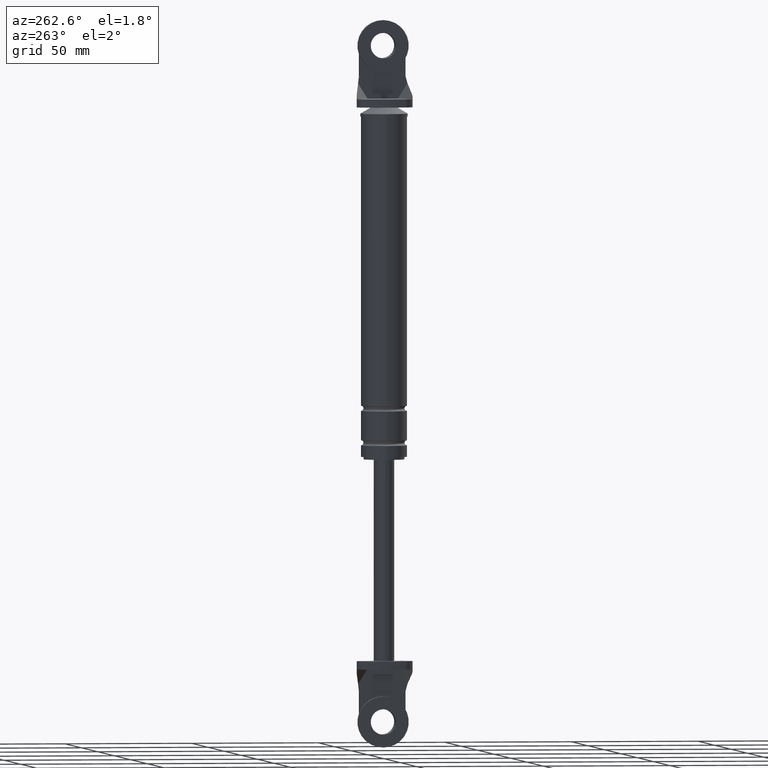
[diagram: clean part render]
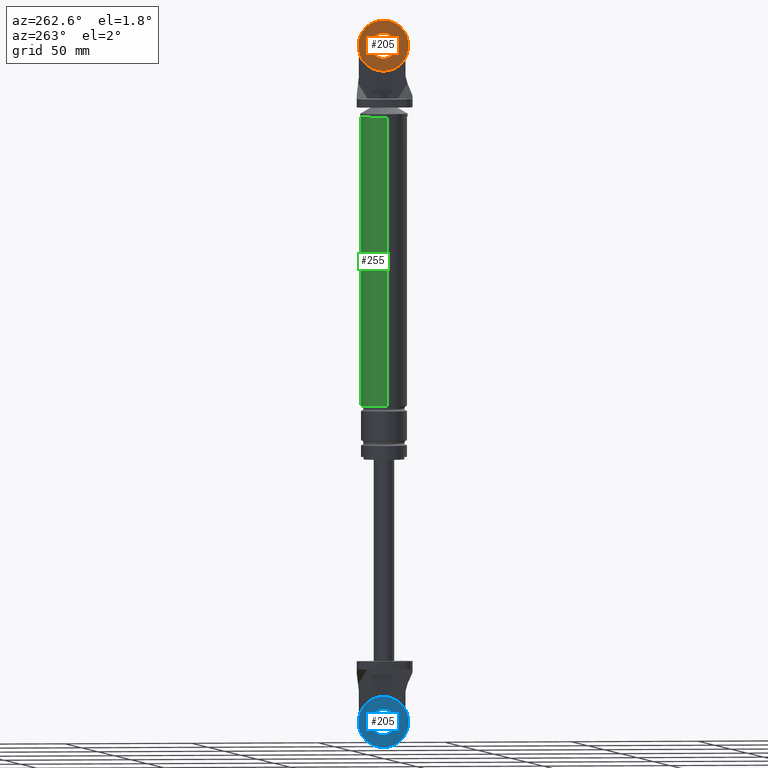
[diagram: same view with three faces highlighted in distinct colors, each labeled with its STEP entity id]
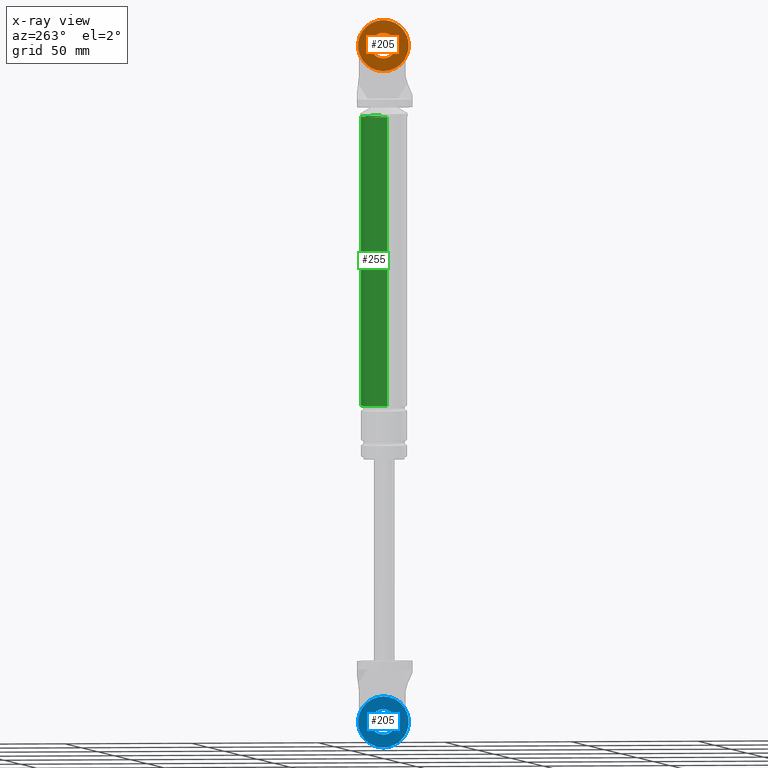
[diagram: x-ray of the same camera — body ghosted, the three highlighted faces saturated]
A machine part, auxiliary view with three faces highlighted in distinct colors.
The next image is the same camera in x-ray (body ghosted, the three faces saturated) — at least one of them is partly hidden behind the body in this view.
Their STEP definitions:

[orange] entity #205 — the highlighted planar face has unit normal (1, 0, 0).
#205=ADVANCED_FACE('',(#298,#299),#297,.F.);
#297=PLANE('',#1125);
#298=FACE_OUTER_BOUND('',#1126,.T.);
#299=FACE_BOUND('',#1127,.T.);
#1122=CARTESIAN_POINT('',(-6.90000460000E+001,2.07846096908E+001,2.76000000000E+002));
#1123=DIRECTION('',(1.00000000000E+000,0.00000000000E+000,0.00000000000E+000));
#1124=DIRECTION('',(0.00000000000E+000,-1.00000000000E+000,0.00000000000E+000));
#1125=AXIS2_PLACEMENT_3D('',#1122,#1123,#1124);
#1126=EDGE_LOOP('',(#1766,#1767));
#1127=EDGE_LOOP('',(#1768,#1769));
#1766=ORIENTED_EDGE('',*,*,#2162,.T.);
#1767=ORIENTED_EDGE('',*,*,#2163,.T.);
#1768=ORIENTED_EDGE('',*,*,#2164,.F.);
#1769=ORIENTED_EDGE('',*,*,#2165,.F.);
#2162=EDGE_CURVE('',#2384,#2385,#2386,.T.);
#2163=EDGE_CURVE('',#2385,#2384,#2392,.T.);
#2164=EDGE_CURVE('',#2398,#2399,#2400,.T.);
#2165=EDGE_CURVE('',#2399,#2398,#2406,.T.);
#2384=VERTEX_POINT('',#3690);
#2385=VERTEX_POINT('',#3691);
#2386=CIRCLE('',#3695,1.00000000000E+001);
#2392=CIRCLE('',#3699,1.00000000000E+001);
#2398=VERTEX_POINT('',#3700);
#2399=VERTEX_POINT('',#3701);
#2400=CIRCLE('',#3705,5.00000000000E+000);
#2406=CIRCLE('',#3709,5.00000000000E+000);
#3690=CARTESIAN_POINT('',(-6.90000460000E+001,5.68434188608E-014,2.43000000000E+002));
#3691=CARTESIAN_POINT('',(-6.90000460000E+001,5.80276567537E-014,2.63000000000E+002));
#3692=CARTESIAN_POINT('',(-6.90000460000E+001,5.68434188608E-014,2.53000000000E+002));
#3693=DIRECTION('',(-1.00000000000E+000,0.00000000000E+000,-0.00000000000E+000));
#3694=DIRECTION('',(0.00000000000E+000,-1.22460635382E-016,-1.00000000000E+000));
#3695=AXIS2_PLACEMENT_3D('',#3692,#3693,#3694);
#3696=CARTESIAN_POINT('',(-6.90000460000E+001,5.68434188608E-014,2.53000000000E+002));
#3697=DIRECTION('',(-1.00000000000E+000,0.00000000000E+000,-0.00000000000E+000));
#3698=DIRECTION('',(0.00000000000E+000,-1.22460635382E-016,-1.00000000000E+000));
#3699=AXIS2_PLACEMENT_3D('',#3696,#3697,#3698);
#3700=CARTESIAN_POINT('',(-6.90000460000E+001,5.74355378073E-014,2.58000000000E+002));
#3701=CARTESIAN_POINT('',(-6.90000460000E+001,5.68434188608E-014,2.48000000000E+002));
#3702=CARTESIAN_POINT('',(-6.90000460000E+001,5.68434188608E-014,2.53000000000E+002));
#3703=DIRECTION('',(-1.00000000000E+000,0.00000000000E+000,-0.00000000000E+000));
#3704=DIRECTION('',(0.00000000000E+000,-1.22460635382E-016,-1.00000000000E+000));
#3705=AXIS2_PLACEMENT_3D('',#3702,#3703,#3704);
#3706=CARTESIAN_POINT('',(-6.90000460000E+001,5.68434188608E-014,2.53000000000E+002));
#3707=DIRECTION('',(-1.00000000000E+000,0.00000000000E+000,-0.00000000000E+000));
#3708=DIRECTION('',(0.00000000000E+000,-1.22460635382E-016,-1.00000000000E+000));
#3709=AXIS2_PLACEMENT_3D('',#3706,#3707,#3708);

[blue] entity #205 — the highlighted planar face has unit normal (1, 0, 0).
#205=ADVANCED_FACE('',(#298,#299),#297,.F.);
#297=PLANE('',#1125);
#298=FACE_OUTER_BOUND('',#1126,.T.);
#299=FACE_BOUND('',#1127,.T.);
#1122=CARTESIAN_POINT('',(-6.90000460000E+001,2.07846096908E+001,2.76000000000E+002));
#1123=DIRECTION('',(1.00000000000E+000,0.00000000000E+000,0.00000000000E+000));
#1124=DIRECTION('',(0.00000000000E+000,-1.00000000000E+000,0.00000000000E+000));
#1125=AXIS2_PLACEMENT_3D('',#1122,#1123,#1124);
#1126=EDGE_LOOP('',(#1766,#1767));
#1127=EDGE_LOOP('',(#1768,#1769));
#1766=ORIENTED_EDGE('',*,*,#2162,.T.);
#1767=ORIENTED_EDGE('',*,*,#2163,.T.);
#1768=ORIENTED_EDGE('',*,*,#2164,.F.);
#1769=ORIENTED_EDGE('',*,*,#2165,.F.);
#2162=EDGE_CURVE('',#2384,#2385,#2386,.T.);
#2163=EDGE_CURVE('',#2385,#2384,#2392,.T.);
#2164=EDGE_CURVE('',#2398,#2399,#2400,.T.);
#2165=EDGE_CURVE('',#2399,#2398,#2406,.T.);
#2384=VERTEX_POINT('',#3690);
#2385=VERTEX_POINT('',#3691);
#2386=CIRCLE('',#3695,1.00000000000E+001);
#2392=CIRCLE('',#3699,1.00000000000E+001);
#2398=VERTEX_POINT('',#3700);
#2399=VERTEX_POINT('',#3701);
#2400=CIRCLE('',#3705,5.00000000000E+000);
#2406=CIRCLE('',#3709,5.00000000000E+000);
#3690=CARTESIAN_POINT('',(-6.90000460000E+001,5.68434188608E-014,2.43000000000E+002));
#3691=CARTESIAN_POINT('',(-6.90000460000E+001,5.80276567537E-014,2.63000000000E+002));
#3692=CARTESIAN_POINT('',(-6.90000460000E+001,5.68434188608E-014,2.53000000000E+002));
#3693=DIRECTION('',(-1.00000000000E+000,0.00000000000E+000,-0.00000000000E+000));
#3694=DIRECTION('',(0.00000000000E+000,-1.22460635382E-016,-1.00000000000E+000));
#3695=AXIS2_PLACEMENT_3D('',#3692,#3693,#3694);
#3696=CARTESIAN_POINT('',(-6.90000460000E+001,5.68434188608E-014,2.53000000000E+002));
#3697=DIRECTION('',(-1.00000000000E+000,0.00000000000E+000,-0.00000000000E+000));
#3698=DIRECTION('',(0.00000000000E+000,-1.22460635382E-016,-1.00000000000E+000));
#3699=AXIS2_PLACEMENT_3D('',#3696,#3697,#3698);
#3700=CARTESIAN_POINT('',(-6.90000460000E+001,5.74355378073E-014,2.58000000000E+002));
#3701=CARTESIAN_POINT('',(-6.90000460000E+001,5.68434188608E-014,2.48000000000E+002));
#3702=CARTESIAN_POINT('',(-6.90000460000E+001,5.68434188608E-014,2.53000000000E+002));
#3703=DIRECTION('',(-1.00000000000E+000,0.00000000000E+000,-0.00000000000E+000));
#3704=DIRECTION('',(0.00000000000E+000,-1.22460635382E-016,-1.00000000000E+000));
#3705=AXIS2_PLACEMENT_3D('',#3702,#3703,#3704);
#3706=CARTESIAN_POINT('',(-6.90000460000E+001,5.68434188608E-014,2.53000000000E+002));
#3707=DIRECTION('',(-1.00000000000E+000,0.00000000000E+000,-0.00000000000E+000));
#3708=DIRECTION('',(0.00000000000E+000,-1.22460635382E-016,-1.00000000000E+000));
#3709=AXIS2_PLACEMENT_3D('',#3706,#3707,#3708);

[green] entity #255 — the highlighted cylindrical surface (edge-blend (fillet) strip) has radius 9 mm, axis along (0, 0, 1).
#255=ADVANCED_FACE('',(#805),#804,.T.);
#804=CYLINDRICAL_SURFACE('',#1558,9.00000000000E+000);
#805=FACE_OUTER_BOUND('',#1559,.T.);
#1555=CARTESIAN_POINT('',(0.00000000000E+000,3.58204186421E-014,0.00000000000E+000));
#1556=DIRECTION('',(-0.00000000000E+000,-0.00000000000E+000,1.00000000000E+000));
#1557=DIRECTION('',(1.00000000000E+000,-0.00000000000E+000,-0.00000000000E+000));
#1558=AXIS2_PLACEMENT_3D('',#1555,#1556,#1557);
#1559=EDGE_LOOP('',(#2000,#2001,#2002,#2003));
#2000=ORIENTED_EDGE('',*,*,#2216,.T.);
#2001=ORIENTED_EDGE('',*,*,#2281,.F.);
#2002=ORIENTED_EDGE('',*,*,#2269,.F.);
#2003=ORIENTED_EDGE('',*,*,#2282,.T.);
#2216=EDGE_CURVE('',#2744,#2743,#2751,.T.);
#2269=EDGE_CURVE('',#3098,#3099,#3100,.T.);
#2281=EDGE_CURVE('',#3099,#2743,#3174,.T.);
#2282=EDGE_CURVE('',#3098,#2744,#3180,.T.);
#2743=VERTEX_POINT('',#3920);
#2744=VERTEX_POINT('',#3921);
#2751=CIRCLE('',#3929,9.00000000000E+000);
#3098=VERTEX_POINT('',#4137);
#3099=VERTEX_POINT('',#4138);
#3100=CIRCLE('',#4142,9.00000000000E+000);
#3174=(BOUNDED_CURVE() B_SPLINE_CURVE(1,(#4179,#4180),.UNSPECIFIED.,.F.,.F.) B_SPLINE_CURVE_WITH_KNOTS((2,2),(7.50187549735E-002,9.24981245010E-001),.UNSPECIFIED.) CURVE() GEOMETRIC_REPRESENTATION_ITEM() RATIONAL_B_SPLINE_CURVE((1.00000000000E+000,1.00000000000E+000)) REPRESENTATION_ITEM('') );
#3180=(BOUNDED_CURVE() B_SPLINE_CURVE(1,(#4181,#4182),.UNSPECIFIED.,.F.,.F.) B_SPLINE_CURVE_WITH_KNOTS((2,2),(7.50187546887E-002,9.24981245311E-001),.UNSPECIFIED.) CURVE() GEOMETRIC_REPRESENTATION_ITEM() RATIONAL_B_SPLINE_CURVE((7.50000000000E-001,7.50000000000E-001)) REPRESENTATION_ITEM('') );
#3920=CARTESIAN_POINT('',(9.00000000000E+000,3.61192557345E-014,8.52999850000E+001));
#3921=CARTESIAN_POINT('',(-9.00000000000E+000,3.58204186421E-014,8.52999850000E+001));
#3926=CARTESIAN_POINT('',(0.00000000000E+000,3.58204186421E-014,8.52999850000E+001));
#3927=DIRECTION('',(-0.00000000000E+000,0.00000000000E+000,-1.00000000000E+000));
#3928=DIRECTION('',(-1.00000000000E+000,-1.22460635382E-016,0.00000000000E+000));
#3929=AXIS2_PLACEMENT_3D('',#3926,#3927,#3928);
#4137=CARTESIAN_POINT('',(-9.00000000000E+000,3.58204186421E-014,-2.80000150000E+001));
#4138=CARTESIAN_POINT('',(9.00000000000E+000,3.61192557345E-014,-2.80000150000E+001));
#4139=CARTESIAN_POINT('',(0.00000000000E+000,3.58204186421E-014,-2.80000150000E+001));
#4140=DIRECTION('',(-0.00000000000E+000,0.00000000000E+000,-1.00000000000E+000));
#4141=DIRECTION('',(-1.00000000000E+000,-1.22460635382E-016,0.00000000000E+000));
#4142=AXIS2_PLACEMENT_3D('',#4139,#4140,#4141);
#4179=CARTESIAN_POINT('',(9.00000000000E+000,3.58204186421E-014,-2.80000149620E+001));
#4180=CARTESIAN_POINT('',(9.00000000000E+000,3.58204186421E-014,8.52999849598E+001));
#4181=CARTESIAN_POINT('',(-9.00000000000E+000,3.52310773148E-014,-2.80000150000E+001));
#4182=CARTESIAN_POINT('',(-9.00000000000E+000,3.52310773148E-014,8.52999850000E+001));